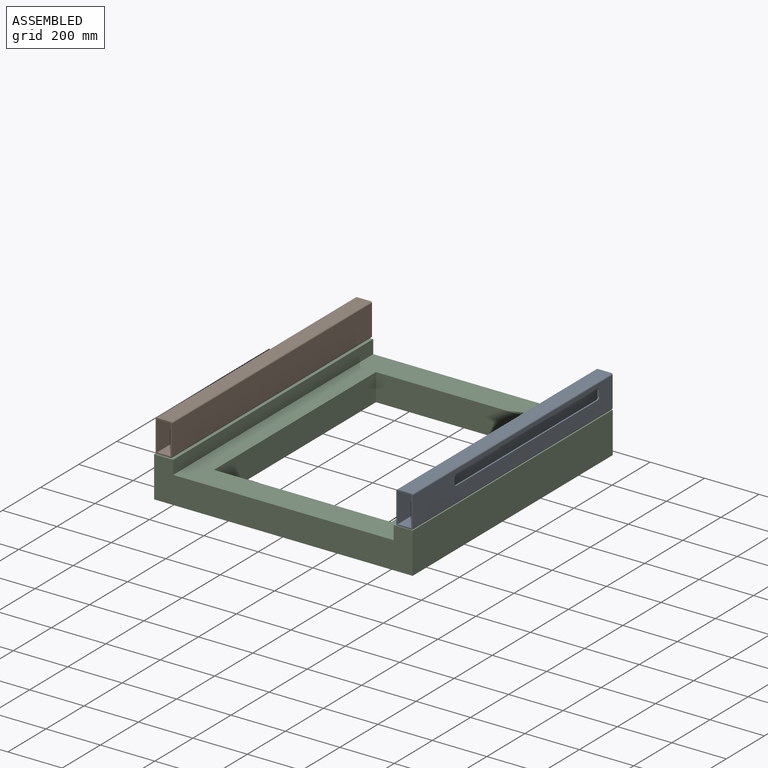
[diagram: assembled view]
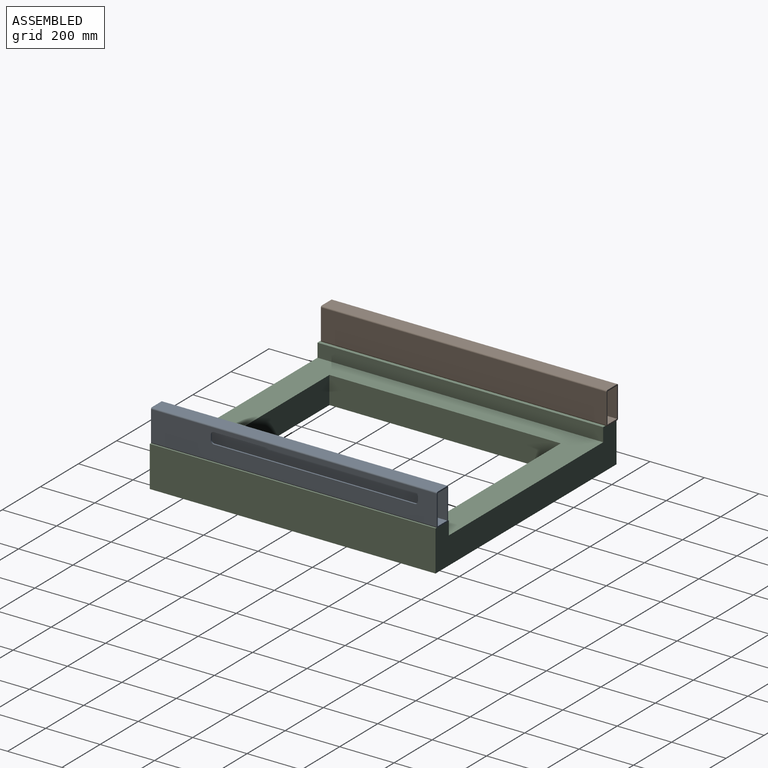
[diagram: assembled view, second angle]
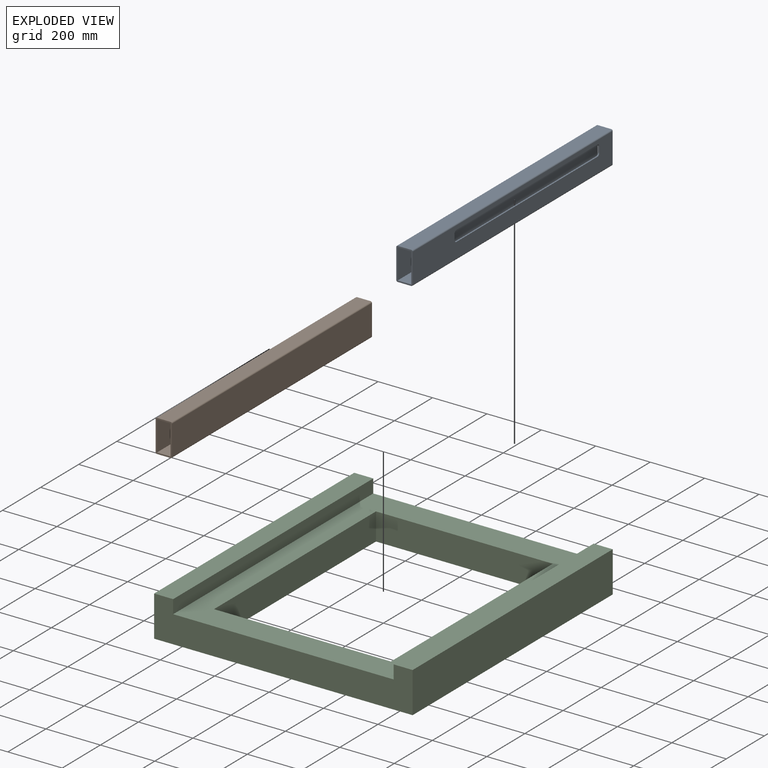
[diagram: exploded view]
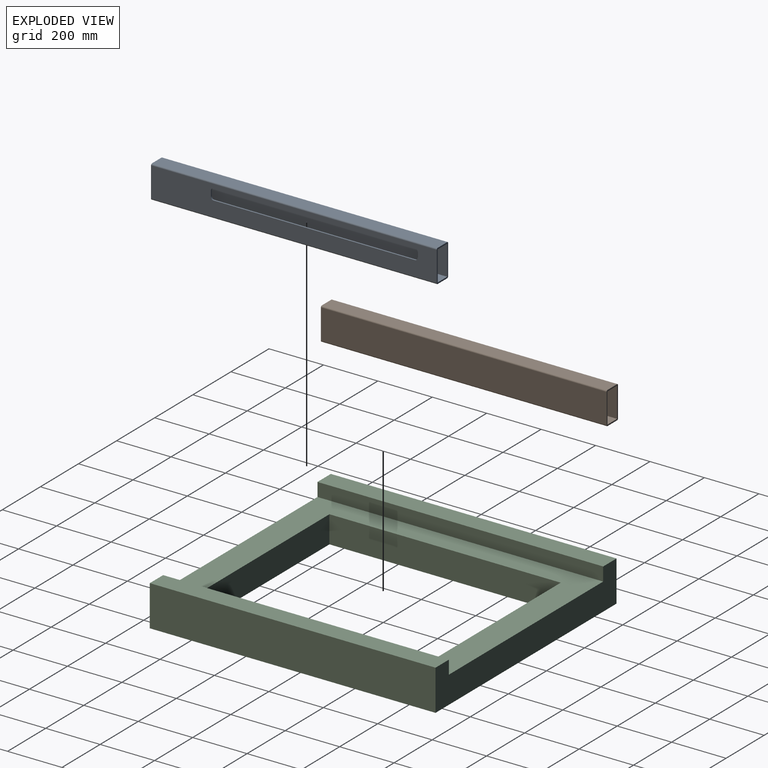
[diagram: exploded view, second angle]
ASSEMBLY  parts=3 mates=2
PART A: 22 faces, bbox 60x1050x120 mm
  f0: plane 1050x110mm, normal (1,0,0), area 85185.8mm2, adj f1,f11,f12,f13,f14,f15,f16,f17
  f1: cylinder r=5mm len=1050mm, axis (0,1,0), area 8246.7mm2, adj f0,f2,f12,f13
  f2: plane 1050x50mm, normal (0,0,1), area 52500mm2, adj f1,f3,f12,f13
  f3: cylinder r=5mm len=1050mm, axis (0,1,0), area 8246.7mm2, adj f2,f4,f12,f13
  f4: plane 1050x110mm, normal (-1,0,0), area 115500mm2, adj f3,f5,f12,f13
  f5: cylinder r=5mm len=1050mm, axis (0,1,0), area 8246.7mm2, adj f4,f6,f12,f13
  f6: plane 1050x50mm, normal (0,0,-1), area 52500mm2, adj f5,f11,f12,f13
  f7: plane 1050x110mm, normal (1,0,0), area 115500mm2, adj f8,f10,f12,f13
  f8: plane 1050x50mm, normal (0,0,-1), area 52500mm2, adj f7,f9,f12,f13
  f9: plane 1050x110mm, normal (-1,0,0), area 85185.8mm2, adj f8,f10,f12,f13,f14,f15,f16,f17
  f10: plane 1050x50mm, normal (0,0,1), area 52500mm2, adj f7,f9,f12,f13
  f11: cylinder r=5mm len=1050mm, axis (0,1,0), area 8246.7mm2, adj f0,f6,f12,f13
  f12: plane 120x60mm, normal (0,-1,0), area 1678.5mm2, adj f0,f1,f2,f3,f4,f5,f6,f7
  f13: plane 120x60mm, normal (0,1,0), area 1678.5mm2, adj f0,f1,f2,f3,f4,f5,f6,f7
  f14: plane 20x5mm, normal (0,1,0), area 100mm2, adj f0,f9,f15,f21
  f15: cylinder r=10mm len=10mm, axis (1,0,0), area 78.5mm2, adj f0,f9,f14,f16
  f16: plane 740x5mm, normal (0,0,1), area 3700mm2, adj f0,f9,f15,f17
  f17: cylinder r=10mm len=10mm, axis (1,0,0), area 78.5mm2, adj f0,f9,f16,f18
  f18: plane 20x5mm, normal (0,-1,0), area 100mm2, adj f0,f9,f17,f19
  f19: cylinder r=10mm len=10mm, axis (1,0,0), area 78.5mm2, adj f0,f9,f18,f20
  f20: plane 740x5mm, normal (0,0,-1), area 3700mm2, adj f0,f9,f19,f21
  f21: cylinder r=10mm len=10mm, axis (1,0,0), area 78.5mm2, adj f0,f9,f14,f20
PART B: 22 faces, bbox 60x1050x120 mm
  f0: plane 1050x110mm, normal (-1,0,0), area 85185.8mm2, adj f1,f11,f12,f13,f14,f15,f16,f17
  f1: cylinder r=5mm len=1050mm, axis (0,1,0), area 8246.7mm2, adj f0,f2,f12,f13
  f2: plane 1050x50mm, normal (0,0,1), area 52500mm2, adj f1,f3,f12,f13
  f3: cylinder r=5mm len=1050mm, axis (0,1,0), area 8246.7mm2, adj f2,f4,f12,f13
  f4: plane 1050x110mm, normal (1,0,0), area 115500mm2, adj f3,f5,f12,f13
  f5: cylinder r=5mm len=1050mm, axis (0,1,0), area 8246.7mm2, adj f4,f6,f12,f13
  f6: plane 1050x50mm, normal (0,0,-1), area 52500mm2, adj f5,f11,f12,f13
  f7: plane 1050x110mm, normal (-1,0,0), area 115500mm2, adj f8,f10,f12,f13
  f8: plane 1050x50mm, normal (0,0,-1), area 52500mm2, adj f7,f9,f12,f13
  f9: plane 1050x110mm, normal (1,0,0), area 85185.8mm2, adj f8,f10,f12,f13,f14,f15,f16,f17
  f10: plane 1050x50mm, normal (0,0,1), area 52500mm2, adj f7,f9,f12,f13
  f11: cylinder r=5mm len=1050mm, axis (0,1,0), area 8246.7mm2, adj f0,f6,f12,f13
  f12: plane 120x60mm, normal (0,-1,0), area 1678.5mm2, adj f0,f1,f2,f3,f4,f5,f6,f7
  f13: plane 120x60mm, normal (0,1,0), area 1678.5mm2, adj f0,f1,f2,f3,f4,f5,f6,f7
  f14: plane 20x5mm, normal (0,1,0), area 100mm2, adj f0,f9,f15,f21
  f15: cylinder r=10mm len=10mm, axis (-1,0,0), area 78.5mm2, adj f0,f9,f14,f16
  f16: plane 740x5mm, normal (0,0,1), area 3700mm2, adj f0,f9,f15,f17
  f17: cylinder r=10mm len=10mm, axis (-1,0,0), area 78.5mm2, adj f0,f9,f16,f18
  f18: plane 20x5mm, normal (0,-1,0), area 100mm2, adj f0,f9,f17,f19
  f19: cylinder r=10mm len=10mm, axis (-1,0,0), area 78.5mm2, adj f0,f9,f18,f20
  f20: plane 740x5mm, normal (0,0,-1), area 3700mm2, adj f0,f9,f19,f21
  f21: cylinder r=10mm len=10mm, axis (-1,0,0), area 78.5mm2, adj f0,f9,f14,f20
PART C: 14 faces, bbox 950x1050x150 mm
  f0: plane 1050x150mm, normal (-1,0,0), area 157500mm2, adj f1,f7,f8,f9
  f1: plane 1050x950mm, normal (0,0,-1), area 445000mm2, adj f0,f2,f8,f9,f10,f11,f12,f13
  f2: plane 1050x150mm, normal (1,0,0), area 157500mm2, adj f1,f3,f8,f9
  f3: plane 1050x70mm, normal (0,0,1), area 73500mm2, adj f2,f4,f8,f9
  f4: plane 1050x50mm, normal (-1,0,0), area 52500mm2, adj f3,f5,f8,f9
  f5: plane 1050x810mm, normal (0,0,1), area 298000mm2, adj f4,f6,f8,f9,f10,f11,f12,f13
  f6: plane 1050x50mm, normal (1,0,0), area 52500mm2, adj f5,f7,f8,f9
  f7: plane 1050x70mm, normal (0,0,1), area 73500mm2, adj f0,f6,f8,f9
  f8: plane 950x150mm, normal (0,-1,0), area 102000mm2, adj f0,f1,f2,f3,f4,f5,f6,f7
  f9: plane 950x150mm, normal (0,1,0), area 102000mm2, adj f0,f1,f2,f3,f4,f5,f6,f7
  f10: plane 650x100mm, normal (0,-1,0), area 65000mm2, adj f1,f5,f11,f12
  f11: plane 850x100mm, normal (-1,0,0), area 85000mm2, adj f1,f5,f10,f13
  f12: plane 850x100mm, normal (1,0,0), area 85000mm2, adj f1,f5,f10,f13
  f13: plane 650x100mm, normal (0,1,0), area 65000mm2, adj f1,f5,f11,f12
PLACE A t=(442.8,2.96,210)mm
PLACE B t=(-443.99,6.18,210)mm
PLACE C at identity fixed
MATE planar C.f3 <-> A.f6  axis (0,0,1) through (440,0,150)mm
MATE planar B.f6 <-> C.f7  axis (0,0,-1) through (-443.99,-518.82,150)mm
